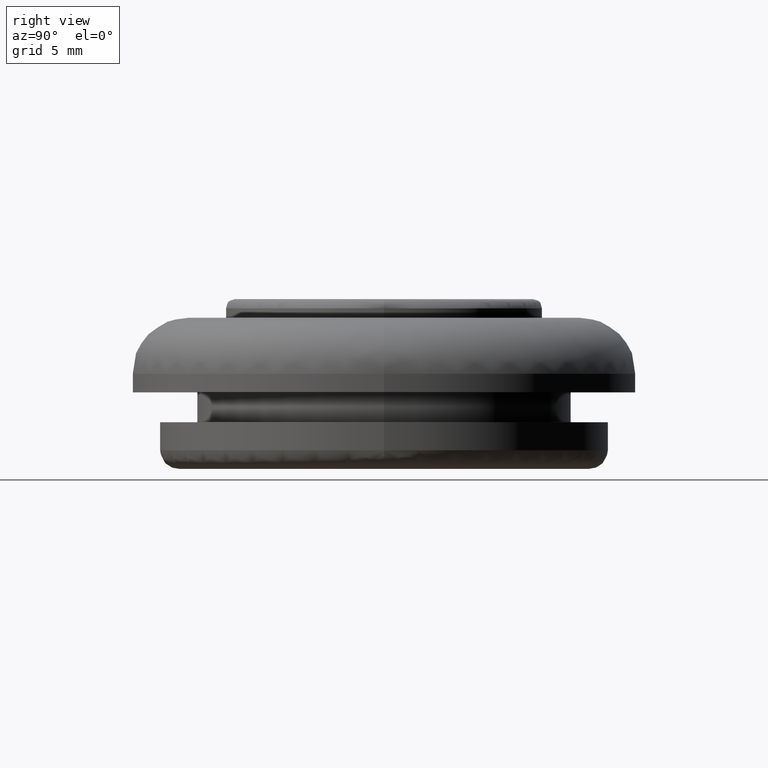
[diagram: clean part render]
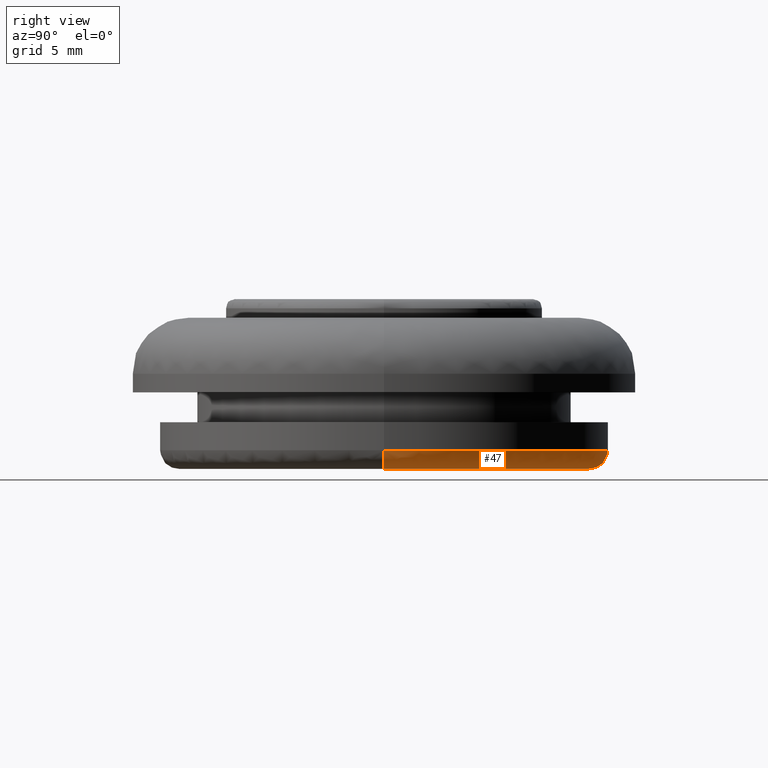
[diagram: same view with one face highlighted and labeled with its STEP entity id]
A machine part, right view. The second image highlights one B-rep face of the part: STEP entity #47.
In plain terms, the highlighted face is a freeform B-spline surface patch.
Its self-contained STEP definition (entity closure, byte-faithful):
#47=ADVANCED_FACE('',(#139),#138,.T.);
#138=( BOUNDED_SURFACE() B_SPLINE_SURFACE( 2,2,((#368,#369,#370,#371,#372),(#373,#374,#375,#376,#377),(#378,#379,#380,#381,#382),(#383,#384,#385,#386,#387),(#388,#389,#390,#391,#392)), .UNSPECIFIED.,.F.,.F.,.F.) B_SPLINE_SURFACE_WITH_KNOTS((3,2,3),(3,2,3),(0.00000000000E+000,5.00000000000E-001,1.00000000000E+000),(0.00000000000E+000,5.00000000000E-001,1.00000000000E+000), .UNSPECIFIED. ) GEOMETRIC_REPRESENTATION_ITEM() RATIONAL_B_SPLINE_SURFACE(((1.00000000000E+000,7.07106781187E-001,1.00000000000E+000,7.07106781187E-001,1.00000000000E+000),(7.07106781187E-001,5.00000000000E-001,7.07106781187E-001,5.00000000000E-001,7.07106781187E-001),(1.00000000000E+000,7.07106781187E-001,1.00000000000E+000,7.07106781187E-001,1.00000000000E+000),(7.07106781187E-001,5.00000000000E-001,7.07106781187E-001,5.00000000000E-001,7.07106781187E-001),(1.00000000000E+000,7.07106781187E-001,1.00000000000E+000,7.07106781187E-001,1.00000000000E+000))) REPRESENTATION_ITEM('') SURFACE() );
#139=FACE_OUTER_BOUND('',#393,.T.);
#368=CARTESIAN_POINT('',(2.64778069758E+002,-4.85343899711E-020,2.64637988893E+002));
#369=CARTESIAN_POINT('',(2.64778069758E+002,-4.85343899711E-020,2.63637988893E+002));
#370=CARTESIAN_POINT('',(2.65778069758E+002,-4.44898574735E-020,2.63637988893E+002));
#371=CARTESIAN_POINT('',(2.66778069758E+002,-4.04453249759E-020,2.63637988893E+002));
#372=CARTESIAN_POINT('',(2.66778069758E+002,-4.04453249759E-020,2.64637988893E+002));
#373=CARTESIAN_POINT('',(2.64778069758E+002,1.20000000000E+001,2.64637988893E+002));
#374=CARTESIAN_POINT('',(2.64778069758E+002,1.20000000000E+001,2.63637988893E+002));
#375=CARTESIAN_POINT('',(2.65778069758E+002,1.10000000000E+001,2.63637988893E+002));
#376=CARTESIAN_POINT('',(2.66778069758E+002,1.00000000000E+001,2.63637988893E+002));
#377=CARTESIAN_POINT('',(2.66778069758E+002,1.00000000000E+001,2.64637988893E+002));
#378=CARTESIAN_POINT('',(2.76778069758E+002,1.20000000000E+001,2.64637988893E+002));
#379=CARTESIAN_POINT('',(2.76778069758E+002,1.20000000000E+001,2.63637988893E+002));
#380=CARTESIAN_POINT('',(2.76778069758E+002,1.10000000000E+001,2.63637988893E+002));
#381=CARTESIAN_POINT('',(2.76778069758E+002,1.00000000000E+001,2.63637988893E+002));
#382=CARTESIAN_POINT('',(2.76778069758E+002,1.00000000000E+001,2.64637988893E+002));
#383=CARTESIAN_POINT('',(2.88778069758E+002,1.20000000000E+001,2.64637988893E+002));
#384=CARTESIAN_POINT('',(2.88778069758E+002,1.20000000000E+001,2.63637988893E+002));
#385=CARTESIAN_POINT('',(2.87778069758E+002,1.10000000000E+001,2.63637988893E+002));
#386=CARTESIAN_POINT('',(2.86778069758E+002,1.00000000000E+001,2.63637988893E+002));
#387=CARTESIAN_POINT('',(2.86778069758E+002,1.00000000000E+001,2.64637988893E+002));
#388=CARTESIAN_POINT('',(2.88778069758E+002,1.46962469337E-015,2.64637988893E+002));
#389=CARTESIAN_POINT('',(2.88778069758E+002,1.46962469337E-015,2.63637988893E+002));
#390=CARTESIAN_POINT('',(2.87778069758E+002,1.34715596892E-015,2.63637988893E+002));
#391=CARTESIAN_POINT('',(2.86778069758E+002,1.22468724447E-015,2.63637988893E+002));
#392=CARTESIAN_POINT('',(2.86778069758E+002,1.22468724447E-015,2.64637988893E+002));
#393=EDGE_LOOP('',(#582,#583,#584,#585));
#582=ORIENTED_EDGE('',*,*,#673,.T.);
#583=ORIENTED_EDGE('',*,*,#670,.T.);
#584=ORIENTED_EDGE('',*,*,#666,.F.);
#585=ORIENTED_EDGE('',*,*,#672,.F.);
#666=EDGE_CURVE('',#808,#809,#810,.T.);
#670=EDGE_CURVE('',#836,#809,#837,.T.);
#672=EDGE_CURVE('',#843,#808,#850,.T.);
#673=EDGE_CURVE('',#843,#836,#856,.T.);
#808=VERTEX_POINT('',#1080);
#809=VERTEX_POINT('',#1081);
#810=CIRCLE('',#1085,1.10000000000E+001);
#836=VERTEX_POINT('',#1100);
#837=(BOUNDED_CURVE() B_SPLINE_CURVE(2,(#1101,#1102,#1103),.UNSPECIFIED.,.F.,.F.) B_SPLINE_CURVE_WITH_KNOTS((3,3),(0.00000000000E+000,5.00000000000E-001),.UNSPECIFIED.) CURVE() GEOMETRIC_REPRESENTATION_ITEM() RATIONAL_B_SPLINE_CURVE((1.00000000000E+000,7.07106781187E-001,1.00000000000E+000)) REPRESENTATION_ITEM('') );
#843=VERTEX_POINT('',#1104);
#850=(BOUNDED_CURVE() B_SPLINE_CURVE(3,(#1109,#1110,#1111,#1112,#1113),.UNSPECIFIED.,.F.,.F.) B_SPLINE_CURVE_WITH_KNOTS((4,1,4),(0.00000000000E+000,2.50000001886E-001,5.00000003275E-001),.UNSPECIFIED.) CURVE() GEOMETRIC_REPRESENTATION_ITEM() RATIONAL_B_SPLINE_CURVE((1.00000000000E+000,1.00000000000E+000,1.00000000000E+000,1.00000000000E+000,1.00000000000E+000)) REPRESENTATION_ITEM('') );
#856=CIRCLE('',#1117,1.20000000000E+001);
#1080=CARTESIAN_POINT('',(2.65778069758E+002,0.00000000000E+000,2.63637988893E+002));
#1081=CARTESIAN_POINT('',(2.87778069758E+002,5.92118946467E-016,2.63637988893E+002));
#1082=CARTESIAN_POINT('',(2.76778069758E+002,0.00000000000E+000,2.63637988893E+002));
#1083=DIRECTION('',(-0.00000000000E+000,0.00000000000E+000,-1.00000000000E+000));
#1084=DIRECTION('',(-1.00000000000E+000,-1.22460635382E-016,0.00000000000E+000));
#1085=AXIS2_PLACEMENT_3D('',#1082,#1083,#1084);
#1100=CARTESIAN_POINT('',(2.88778069758E+002,-5.92118946467E-016,2.64637988893E+002));
#1101=CARTESIAN_POINT('',(2.88778069758E+002,-1.46952762459E-015,2.64637988893E+002));
#1102=CARTESIAN_POINT('',(2.88778069758E+002,-1.46952762459E-015,2.63637988893E+002));
#1103=CARTESIAN_POINT('',(2.87778069758E+002,-1.34706698920E-015,2.63637988893E+002));
#1104=CARTESIAN_POINT('',(2.64778069758E+002,0.00000000000E+000,2.64637988893E+002));
#1109=CARTESIAN_POINT('',(2.64778069758E+002,1.77635683940E-015,2.64637988893E+002));
#1110=CARTESIAN_POINT('',(2.64775845699E+002,1.97021151382E-015,2.64378538451E+002));
#1111=CARTESIAN_POINT('',(2.64994693448E+002,2.06510138745E-015,2.63854612575E+002));
#1112=CARTESIAN_POINT('',(2.65518619326E+002,1.53040116571E-015,2.63635764831E+002));
#1113=CARTESIAN_POINT('',(2.65778069767E+002,1.18423788972E-015,2.63637988893E+002));
#1114=CARTESIAN_POINT('',(2.76778069758E+002,0.00000000000E+000,2.64637988893E+002));
#1115=DIRECTION('',(-0.00000000000E+000,0.00000000000E+000,-1.00000000000E+000));
#1116=DIRECTION('',(-1.00000000000E+000,-1.22460635382E-016,0.00000000000E+000));
#1117=AXIS2_PLACEMENT_3D('',#1114,#1115,#1116);